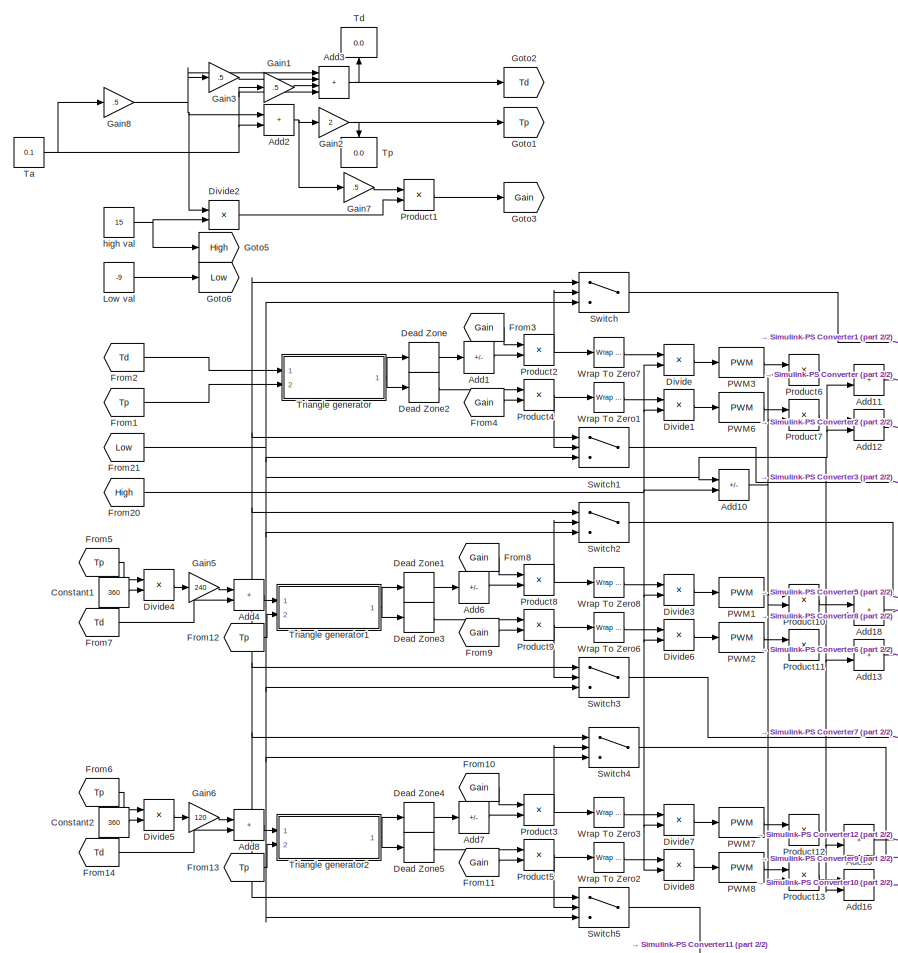
[diagram: root canvas - part 1/2, left side, full height]
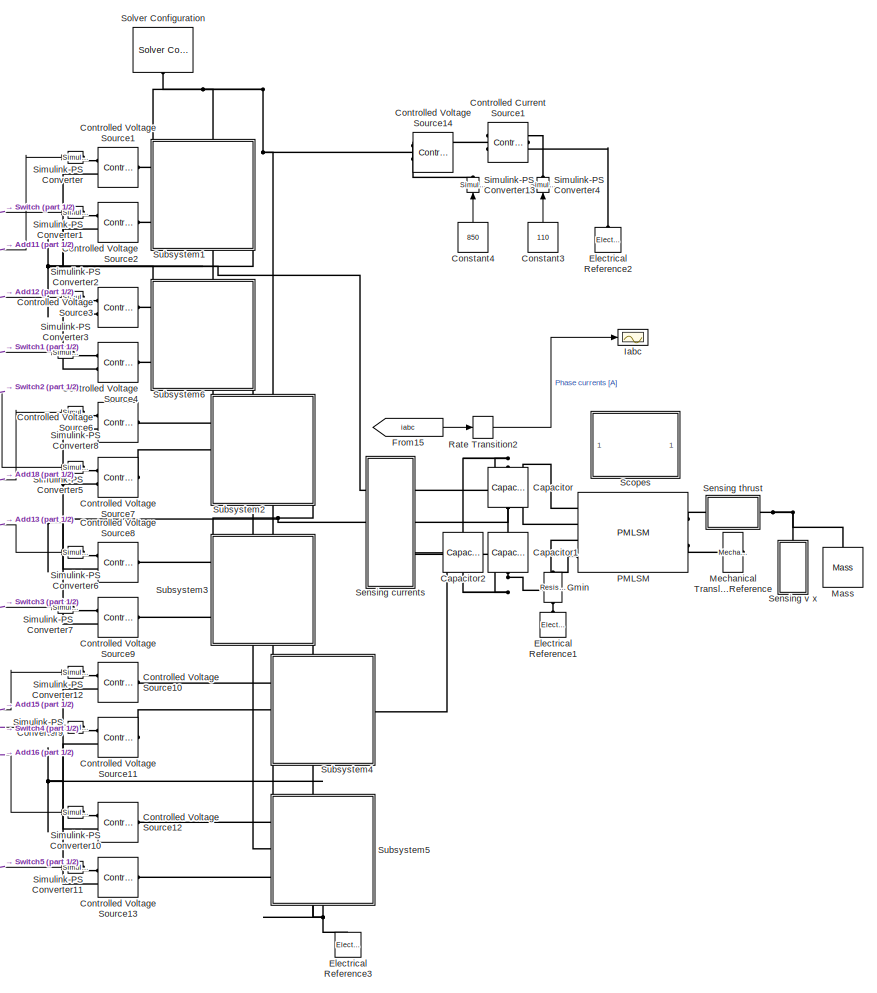
[diagram: root canvas - part 2/2, right side, full height]
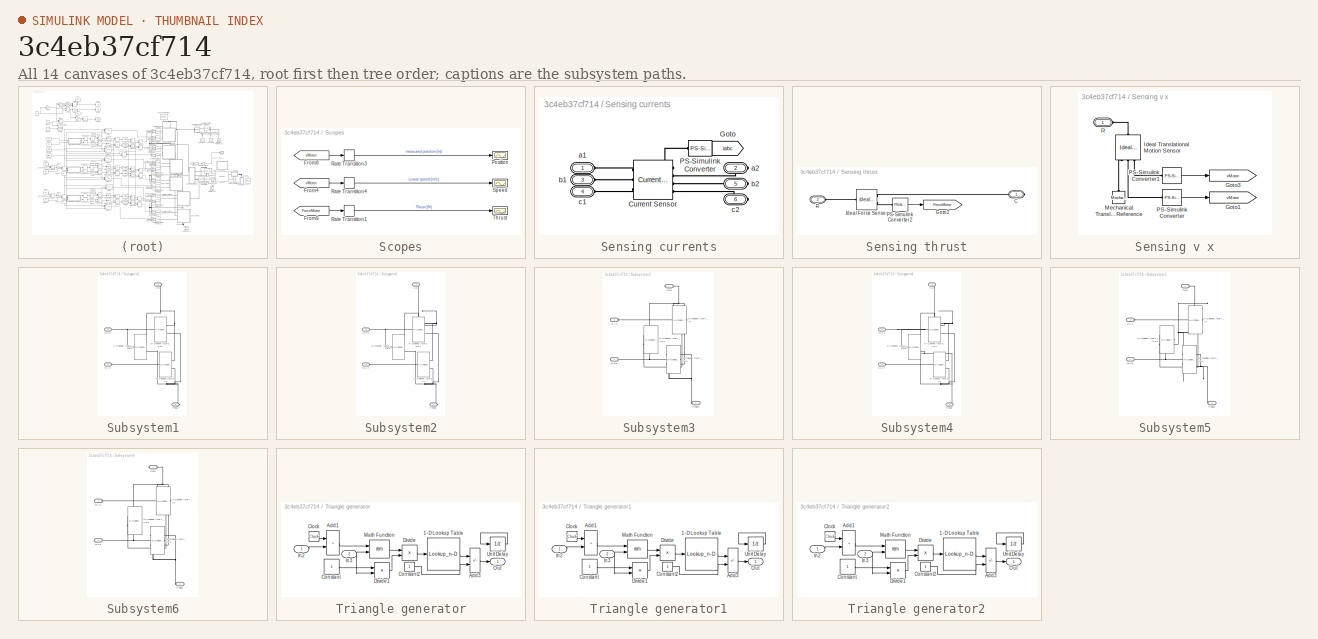
[diagram: thumbnail index - all 14 canvases of the model, root first then tree order]
MODEL slx_3c4eb37cf714
KIND model
CONFIG AbsTol = auto
CONFIG EnableMultiTasking = off
CONFIG FixedStep = auto
CONFIG MaxStep = auto
CONFIG MinStep = auto
CONFIG RelTol = 1e-3
CONFIG SampleTimeConstraint = Unconstrained
CONFIG SolverName = VariableStepAuto
CONFIG StartTime = 0.0
CONFIG StopTime = 1
BLOCK [Sum] Add1
  IconShape = rectangular
  Inputs = -
  Ports = [1, 1]
BLOCK [Sum] Add10
  IconShape = rectangular
  Inputs = -+
  Ports = [2, 1]
BLOCK [Sum] Add11
  IconShape = rectangular
  Ports = [2, 1]
BLOCK [Sum] Add12
  IconShape = rectangular
  Ports = [2, 1]
BLOCK [Sum] Add13
  IconShape = rectangular
  Ports = [2, 1]
BLOCK [Sum] Add15
  IconShape = rectangular
  Ports = [2, 1]
BLOCK [Sum] Add16
  IconShape = rectangular
  Ports = [2, 1]
BLOCK [Sum] Add18
  IconShape = rectangular
  Ports = [2, 1]
BLOCK [Sum] Add2
  IconShape = rectangular
  Ports = [2, 1]
BLOCK [Sum] Add3
  IconShape = rectangular
  Inputs = ++++
  Ports = [4, 1]
BLOCK [Sum] Add4
  IconShape = rectangular
  Ports = [2, 1]
BLOCK [Sum] Add6
  IconShape = rectangular
  Inputs = -
  Ports = [1, 1]
BLOCK [Sum] Add7
  IconShape = rectangular
  Inputs = -
  Ports = [1, 1]
BLOCK [Sum] Add8
  IconShape = rectangular
  Ports = [2, 1]
BLOCK [Reference] Capacitor  REF=fl_lib/Electrical/Electrical Elements/Capacitor
  NameLocation = left
  Ports = [0, 0, 0, 0, 0, 1, 1]
  SourceBlock = fl_lib/Electrical/Electrical Elements/Capacitor
  SourceProductBaseCode = SS
  SourceType = Capacitor
BLOCK [Reference] Capacitor1  REF=fl_lib/Electrical/Electrical Elements/Capacitor
  NameLocation = left
  Ports = [0, 0, 0, 0, 0, 1, 1]
  SourceBlock = fl_lib/Electrical/Electrical Elements/Capacitor
  SourceProductBaseCode = SS
  SourceType = Capacitor
BLOCK [Reference] Capacitor2  REF=fl_lib/Electrical/Electrical Elements/Capacitor
  NameLocation = left
  Ports = [0, 0, 0, 0, 0, 1, 1]
  SourceBlock = fl_lib/Electrical/Electrical Elements/Capacitor
  SourceProductBaseCode = SS
  SourceType = Capacitor
BLOCK [Constant] Constant1
  Value = 360
BLOCK [Constant] Constant2
  Value = 360
BLOCK [Constant] Constant3
  NameLocation = right
  Value = 110
BLOCK [Constant] Constant4
  NameLocation = right
  Value = 850
BLOCK [Reference] Controlled Current Source1  REF=fl_lib/Electrical/Electrical Sources/Controlled Current
Source
  NameLocation = top
  Ports = [0, 0, 0, 0, 0, 1, 2]
  SourceBlock = fl_lib/Electrical/Electrical Sources/Controlled Current\nSource
  SourceProductBaseCode = SS
  SourceType = Controlled Current\nSource
BLOCK [Reference] Controlled Voltage Source1  REF=fl_lib/Electrical/Electrical Sources/Controlled Voltage
Source
  Ports = [0, 0, 0, 0, 0, 1, 2]
  SourceBlock = fl_lib/Electrical/Electrical Sources/Controlled Voltage\nSource
  SourceProductBaseCode = SS
  SourceType = Controlled Voltage\nSource
BLOCK [Reference] Controlled Voltage Source10  REF=fl_lib/Electrical/Electrical Sources/Controlled Voltage
Source
  Ports = [0, 0, 0, 0, 0, 1, 2]
  SourceBlock = fl_lib/Electrical/Electrical Sources/Controlled Voltage\nSource
  SourceProductBaseCode = SS
  SourceType = Controlled Voltage\nSource
BLOCK [Reference] Controlled Voltage Source11  REF=fl_lib/Electrical/Electrical Sources/Controlled Voltage
Source
  Ports = [0, 0, 0, 0, 0, 1, 2]
  SourceBlock = fl_lib/Electrical/Electrical Sources/Controlled Voltage\nSource
  SourceProductBaseCode = SS
  SourceType = Controlled Voltage\nSource
BLOCK [Reference] Controlled Voltage Source12  REF=fl_lib/Electrical/Electrical Sources/Controlled Voltage
Source
  Ports = [0, 0, 0, 0, 0, 1, 2]
  SourceBlock = fl_lib/Electrical/Electrical Sources/Controlled Voltage\nSource
  SourceProductBaseCode = SS
  SourceType = Controlled Voltage\nSource
BLOCK [Reference] Controlled Voltage Source13  REF=fl_lib/Electrical/Electrical Sources/Controlled Voltage
Source
  Ports = [0, 0, 0, 0, 0, 1, 2]
  SourceBlock = fl_lib/Electrical/Electrical Sources/Controlled Voltage\nSource
  SourceProductBaseCode = SS
  SourceType = Controlled Voltage\nSource
BLOCK [Reference] Controlled Voltage Source14  REF=fl_lib/Electrical/Electrical Sources/Controlled Voltage
Source
  NameLocation = top
  Ports = [0, 0, 0, 0, 0, 1, 2]
  SourceBlock = fl_lib/Electrical/Electrical Sources/Controlled Voltage\nSource
  SourceProductBaseCode = SS
  SourceType = Controlled Voltage\nSource
BLOCK [Reference] Controlled Voltage Source2  REF=fl_lib/Electrical/Electrical Sources/Controlled Voltage
Source
  Ports = [0, 0, 0, 0, 0, 1, 2]
  SourceBlock = fl_lib/Electrical/Electrical Sources/Controlled Voltage\nSource
  SourceProductBaseCode = SS
  SourceType = Controlled Voltage\nSource
BLOCK [Reference] Controlled Voltage Source3  REF=fl_lib/Electrical/Electrical Sources/Controlled Voltage
Source
  Ports = [0, 0, 0, 0, 0, 1, 2]
  SourceBlock = fl_lib/Electrical/Electrical Sources/Controlled Voltage\nSource
  SourceProductBaseCode = SS
  SourceType = Controlled Voltage\nSource
BLOCK [Reference] Controlled Voltage Source4  REF=fl_lib/Electrical/Electrical Sources/Controlled Voltage
Source
  Ports = [0, 0, 0, 0, 0, 1, 2]
  SourceBlock = fl_lib/Electrical/Electrical Sources/Controlled Voltage\nSource
  SourceProductBaseCode = SS
  SourceType = Controlled Voltage\nSource
BLOCK [Reference] Controlled Voltage Source6  REF=fl_lib/Electrical/Electrical Sources/Controlled Voltage
Source
  Ports = [0, 0, 0, 0, 0, 1, 2]
  SourceBlock = fl_lib/Electrical/Electrical Sources/Controlled Voltage\nSource
  SourceProductBaseCode = SS
  SourceType = Controlled Voltage\nSource
BLOCK [Reference] Controlled Voltage Source7  REF=fl_lib/Electrical/Electrical Sources/Controlled Voltage
Source
  Ports = [0, 0, 0, 0, 0, 1, 2]
  SourceBlock = fl_lib/Electrical/Electrical Sources/Controlled Voltage\nSource
  SourceProductBaseCode = SS
  SourceType = Controlled Voltage\nSource
BLOCK [Reference] Controlled Voltage Source8  REF=fl_lib/Electrical/Electrical Sources/Controlled Voltage
Source
  Ports = [0, 0, 0, 0, 0, 1, 2]
  SourceBlock = fl_lib/Electrical/Electrical Sources/Controlled Voltage\nSource
  SourceProductBaseCode = SS
  SourceType = Controlled Voltage\nSource
BLOCK [Reference] Controlled Voltage Source9  REF=fl_lib/Electrical/Electrical Sources/Controlled Voltage
Source
  Ports = [0, 0, 0, 0, 0, 1, 2]
  SourceBlock = fl_lib/Electrical/Electrical Sources/Controlled Voltage\nSource
  SourceProductBaseCode = SS
  SourceType = Controlled Voltage\nSource
BLOCK [DeadZone] Dead Zone
  LowerValue = 0
  UpperValue = 18
BLOCK [DeadZone] Dead Zone1
  LowerValue = 0
  UpperValue = 18
BLOCK [DeadZone] Dead Zone2
  LowerValue = -18
  UpperValue = 0
BLOCK [DeadZone] Dead Zone3
  LowerValue = -18
  UpperValue = 0
BLOCK [DeadZone] Dead Zone4
  LowerValue = 0
  UpperValue = 18
BLOCK [DeadZone] Dead Zone5
  LowerValue = -18
  UpperValue = 0
BLOCK [Product] Divide
  Inputs = */
  Ports = [2, 1]
BLOCK [Product] Divide1
  Inputs = */
  Ports = [2, 1]
BLOCK [Product] Divide2
  Inputs = /*
  Ports = [2, 1]
BLOCK [Product] Divide3
  Inputs = */
  Ports = [2, 1]
BLOCK [Product] Divide4
  Inputs = */
  Ports = [2, 1]
BLOCK [Product] Divide5
  Inputs = */
  Ports = [2, 1]
BLOCK [Product] Divide6
  Inputs = */
  Ports = [2, 1]
BLOCK [Product] Divide7
  Inputs = */
  Ports = [2, 1]
BLOCK [Product] Divide8
  Inputs = */
  Ports = [2, 1]
BLOCK [Reference] Electrical Reference1  REF=fl_lib/Electrical/Electrical Elements/Electrical Reference
  NameLocation = right
  Ports = [0, 0, 0, 0, 0, 1]
  SourceBlock = fl_lib/Electrical/Electrical Elements/Electrical Reference
  SourceProductName = Foundation Library
  SourceType = Electrical Reference
BLOCK [Reference] Electrical Reference2  REF=fl_lib/Electrical/Electrical Elements/Electrical Reference
  Ports = [0, 0, 0, 0, 0, 1]
  SourceBlock = fl_lib/Electrical/Electrical Elements/Electrical Reference
  SourceProductName = Foundation Library
  SourceType = Electrical Reference
BLOCK [Reference] Electrical Reference3  REF=fl_lib/Electrical/Electrical Elements/Electrical Reference
  Ports = [0, 0, 0, 0, 0, 1]
  SourceBlock = fl_lib/Electrical/Electrical Elements/Electrical Reference
  SourceProductName = Foundation Library
  SourceType = Electrical Reference
BLOCK [From] From1
  GotoTag = Tp
BLOCK [From] From10
  GotoTag = Gain
BLOCK [From] From11
  GotoTag = Gain
BLOCK [From] From12
  GotoTag = Tp
BLOCK [From] From13
  GotoTag = Tp
BLOCK [From] From14
  GotoTag = Td
BLOCK [From] From15
  GotoTag = iabc
  TagVisibility = global
BLOCK [From] From2
  GotoTag = Td
BLOCK [From] From20
  GotoTag = High
BLOCK [From] From21
  GotoTag = Low
BLOCK [From] From3
  GotoTag = Gain
BLOCK [From] From4
  GotoTag = Gain
BLOCK [From] From5
  GotoTag = Tp
BLOCK [From] From6
  GotoTag = Tp
BLOCK [From] From7
  GotoTag = Td
BLOCK [From] From8
  GotoTag = Gain
BLOCK [From] From9
  GotoTag = Gain
BLOCK [Gain] Gain1
  Gain = .5
BLOCK [Gain] Gain2
  Gain = 2
BLOCK [Gain] Gain3
  Gain = .5
BLOCK [Gain] Gain5
  Gain = 240
BLOCK [Gain] Gain6
  Gain = 120
BLOCK [Gain] Gain7
  Gain = .5
BLOCK [Gain] Gain8
  Gain = .5
BLOCK [Reference] Gmin  REF=fl_lib/Electrical/Electrical Elements/Resistor
  NameLocation = right
  Ports = [0, 0, 0, 0, 0, 1, 1]
  SourceBlock = fl_lib/Electrical/Electrical Elements/Resistor
  SourceProductName = Foundation Library
  SourceType = Resistor
BLOCK [Goto] Goto1
  GotoTag = Tp
BLOCK [Goto] Goto2
  GotoTag = Td
BLOCK [Goto] Goto3
  GotoTag = Gain
BLOCK [Goto] Goto5
  GotoTag = High
BLOCK [Goto] Goto6
  GotoTag = Low
BLOCK [Scope] Iabc
  Floating = off
  NumInputPorts = 1
  Ports = [1]
  ScopeSpecificationString = Simulink.scopes.TimeScopeBlockCfg('CurrentConfiguration', extmgr.ConfigurationSet(extmgr.Configuration('Core','General UI',true),extmgr.Configuration('Core','Source UI',true),extmgr.Configuration('Sources','WiredSimulink',true,'DataLoggingVariableName','ScopeData1','DataLoggingSaveFormat','Array','DataLoggingDecimation','1','DataLoggingDecimateData',true),extmgr.Configuration('Visuals','Time Domai...<+1524ch>
BLOCK [Constant] Low val 
  Value = -9
BLOCK [Reference] Mass  REF=fl_lib/Mechanical/Translational
Elements/Mass
  Ports = [0, 0, 0, 0, 0, 1]
  SourceBlock = fl_lib/Mechanical/Translational\nElements/Mass
  SourceProductName = Foundation Library
  SourceType = Mass
BLOCK [Reference] Mechanical Translational Reference  REF=fl_lib/Mechanical/Translational
Elements/Mechanical
Translational
Reference
  Ports = [0, 0, 0, 0, 0, 1]
  SourceBlock = fl_lib/Mechanical/Translational\nElements/Mechanical\nTranslational\nReference
  SourceProductName = Foundation Library
  SourceType = Mechanical\nTranslational\nReference
BLOCK [Reference] PMLSM  REF=ee_lib/Electromechanical/Permanent Magnet/PMLSM
  Ports = [0, 0, 0, 0, 0, 4, 2]
  SourceBlock = ee_lib/Electromechanical/Permanent Magnet/PMLSM
  SourceProductName = Electrical
  SourceType = PMLSM
BLOCK [Reference] PWM1  REF=simulink/Discontinuities/PWM
  DisableCoverage = on
  Ports = [1, 1]
  SourceBlock = simulink/Discontinuities/PWM
  SourceProductBaseCode = SL
  SourceType = PWM
BLOCK [Reference] PWM2  REF=simulink/Discontinuities/PWM
  DisableCoverage = on
  Ports = [1, 1]
  SourceBlock = simulink/Discontinuities/PWM
  SourceProductBaseCode = SL
  SourceType = PWM
BLOCK [Reference] PWM3  REF=simulink/Discontinuities/PWM
  DisableCoverage = on
  Ports = [1, 1]
  SourceBlock = simulink/Discontinuities/PWM
  SourceProductBaseCode = SL
  SourceType = PWM
BLOCK [Reference] PWM6  REF=simulink/Discontinuities/PWM
  DisableCoverage = on
  Ports = [1, 1]
  SourceBlock = simulink/Discontinuities/PWM
  SourceProductBaseCode = SL
  SourceType = PWM
BLOCK [Reference] PWM7  REF=simulink/Discontinuities/PWM
  DisableCoverage = on
  Ports = [1, 1]
  SourceBlock = simulink/Discontinuities/PWM
  SourceProductBaseCode = SL
  SourceType = PWM
BLOCK [Reference] PWM8  REF=simulink/Discontinuities/PWM
  DisableCoverage = on
  Ports = [1, 1]
  SourceBlock = simulink/Discontinuities/PWM
  SourceProductBaseCode = SL
  SourceType = PWM
BLOCK [Product] Product1
  Ports = [2, 1]
BLOCK [Product] Product10
  Ports = [2, 1]
BLOCK [Product] Product11
  Ports = [2, 1]
BLOCK [Product] Product12
  Ports = [2, 1]
BLOCK [Product] Product13
  Ports = [2, 1]
BLOCK [Product] Product2
  Ports = [2, 1]
BLOCK [Product] Product3
  Ports = [2, 1]
BLOCK [Product] Product4
  Ports = [2, 1]
BLOCK [Product] Product5
  Ports = [2, 1]
BLOCK [Product] Product6
  Ports = [2, 1]
BLOCK [Product] Product7
  Ports = [2, 1]
BLOCK [Product] Product8
  Ports = [2, 1]
BLOCK [Product] Product9
  Ports = [2, 1]
BLOCK [RateTransition] Rate Transition2
  OutPortSampleTime = Tsc
BLOCK [SubSystem] Scopes
  Ports = []
  RequestExecContextInheritance = off
BLOCK [From] Scopes/From4
  GotoTag = vMotor
  TagVisibility = global
BLOCK [From] Scopes/From8
  GotoTag = xMotor
  TagVisibility = global
BLOCK [From] Scopes/From9
  GotoTag = ForceMotor
  NameLocation = top
  TagVisibility = global
BLOCK [Scope] Scopes/Position
  Floating = off
  NumInputPorts = 1
  Ports = [1]
  ScopeSpecificationString = Simulink.scopes.TimeScopeBlockCfg('CurrentConfiguration', extmgr.ConfigurationSet(extmgr.Configuration('Core','General UI',true),extmgr.Configuration('Core','Source UI',true),extmgr.Configuration('Sources','WiredSimulink',true,'DataLoggingVariableName','ScopeData4','DataLoggingSaveFormat','Array','DataLoggingDecimation','1','DataLoggingDecimateData',true),extmgr.Configuration('Visuals','Time Domai...<+1544ch>
BLOCK [RateTransition] Scopes/Rate Transition1
  OutPortSampleTime = Tsc
BLOCK [RateTransition] Scopes/Rate Transition3
  OutPortSampleTime = Tsc
BLOCK [RateTransition] Scopes/Rate Transition4
  OutPortSampleTime = Tsc
BLOCK [Scope] Scopes/Speed
  Floating = off
  NumInputPorts = 1
  Ports = [1]
  ScopeSpecificationString = Simulink.scopes.TimeScopeBlockCfg('CurrentConfiguration', extmgr.ConfigurationSet(extmgr.Configuration('Core','General UI',true),extmgr.Configuration('Core','Source UI',true),extmgr.Configuration('Sources','WiredSimulink',true,'DataLoggingVariableName','ScopeData5','DataLoggingSaveFormat','Array','DataLoggingDecimation','1','DataLoggingDecimateData',true),extmgr.Configuration('Visuals','Time Domai...<+1541ch>
BLOCK [Scope] Scopes/Thrust
  Floating = off
  NumInputPorts = 1
  Ports = [1]
  ScopeSpecificationString = Simulink.scopes.TimeScopeBlockCfg('CurrentConfiguration', extmgr.ConfigurationSet(extmgr.Configuration('Core','General UI',true),extmgr.Configuration('Core','Source UI',true),extmgr.Configuration('Sources','WiredSimulink',true,'DataLoggingVariableName','ScopeData7','DataLoggingSaveFormat','Array','DataLoggingDecimation','1','DataLoggingDecimateData',true),extmgr.Configuration('Visuals','Time Domai...<+1547ch>
BLOCK [SubSystem] Sensing currents
  Ports = [0, 0, 0, 0, 0, 3, 3]
  RequestExecContextInheritance = off
BLOCK [Reference] Sensing currents/Current Sensor  REF=ee_lib/Sensors &
Transducers/Current Sensor
(Three-Phase)
  Ports = [0, 0, 0, 0, 0, 3, 4]
  SourceBlock = ee_lib/Sensors &\nTransducers/Current Sensor\n(Three-Phase)
  SourceProductName = Electrical
  SourceType = Current Sensor\n(Three-Phase)
BLOCK [Goto] Sensing currents/Goto
  GotoTag = iabc
  TagVisibility = global
BLOCK [Reference] Sensing currents/PS-Simulink Converter  REF=nesl_utility/PS-Simulink
Converter
  Ports = [0, 1, 0, 0, 0, 1]
  SourceBlock = nesl_utility/PS-Simulink\nConverter
  SourceProductName = Utilities
  SourceType = PS-Simulink\nConverter
BLOCK [PMIOPort] Sensing currents/a1
  Side = Left
BLOCK [PMIOPort] Sensing currents/a2
  Port = 2
  Side = Right
BLOCK [PMIOPort] Sensing currents/b1
  Port = 3
  Side = Left
BLOCK [PMIOPort] Sensing currents/b2
  Port = 5
  Side = Right
BLOCK [PMIOPort] Sensing currents/c1
  Port = 4
  Side = Left
BLOCK [PMIOPort] Sensing currents/c2
  Port = 6
  Side = Right
BLOCK [SubSystem] Sensing thrust
  Ports = [0, 0, 0, 0, 0, 1, 1]
  RequestExecContextInheritance = off
BLOCK [PMIOPort] Sensing thrust/C
  Side = Right
BLOCK [Goto] Sensing thrust/Goto2
  GotoTag = ForceMotor
  NameLocation = top
  TagVisibility = global
BLOCK [Reference] Sensing thrust/Ideal Force Sensor  REF=fl_lib/Mechanical/Mechanical Sensors/Ideal Force Sensor
  Ports = [0, 0, 0, 0, 0, 1, 2]
  SourceBlock = fl_lib/Mechanical/Mechanical Sensors/Ideal Force Sensor
  SourceProductName = Foundation Library
  SourceType = Ideal Force Sensor
BLOCK [Reference] Sensing thrust/PS-Simulink Converter2  REF=nesl_utility/PS-Simulink
Converter
  Ports = [0, 1, 0, 0, 0, 1]
  SourceBlock = nesl_utility/PS-Simulink\nConverter
  SourceProductName = Utilities
  SourceType = PS-Simulink\nConverter
BLOCK [PMIOPort] Sensing thrust/R
  Port = 2
  Side = Left
BLOCK [SubSystem] Sensing v x
  NameLocation = left
  Ports = [0, 0, 0, 0, 0, 1]
  RequestExecContextInheritance = off
BLOCK [Goto] Sensing v x/Goto1
  GotoTag = vMotor
  NameLocation = top
  TagVisibility = global
BLOCK [Goto] Sensing v x/Goto3
  GotoTag = xMotor
  NameLocation = top
  TagVisibility = global
BLOCK [Reference] Sensing v x/Ideal Translational Motion Sensor  REF=fl_lib/Mechanical/Mechanical Sensors/Ideal Translational
Motion Sensor
  Ports = [0, 0, 0, 0, 0, 1, 3]
  SourceBlock = fl_lib/Mechanical/Mechanical Sensors/Ideal Translational\nMotion Sensor
  SourceProductName = Foundation Library
  SourceType = Ideal Translational\nMotion Sensor
BLOCK [Reference] Sensing v x/Mechanical Translational Reference  REF=fl_lib/Mechanical/Translational
Elements/Mechanical
Translational
Reference
  NameLocation = left
  Ports = [0, 0, 0, 0, 0, 1]
  SourceBlock = fl_lib/Mechanical/Translational\nElements/Mechanical\nTranslational\nReference
  SourceProductName = Foundation Library
  SourceType = Mechanical\nTranslational\nReference
BLOCK [Reference] Sensing v x/PS-Simulink Converter  REF=nesl_utility/PS-Simulink
Converter
  Ports = [0, 1, 0, 0, 0, 1]
  SourceBlock = nesl_utility/PS-Simulink\nConverter
  SourceProductName = Utilities
  SourceType = PS-Simulink\nConverter
BLOCK [Reference] Sensing v x/PS-Simulink Converter1  REF=nesl_utility/PS-Simulink
Converter
  Ports = [0, 1, 0, 0, 0, 1]
  SourceBlock = nesl_utility/PS-Simulink\nConverter
  SourceProductName = Utilities
  SourceType = PS-Simulink\nConverter
BLOCK [PMIOPort] Sensing v x/R
  Side = Left
BLOCK [Reference] Simulink-PS Converter  REF=nesl_utility/Simulink-PS
Converter
  Ports = [1, 0, 0, 0, 0, 0, 1]
  SourceBlock = nesl_utility/Simulink-PS\nConverter
  SourceProductBaseCode = SS
  SourceType = Simulink-PS\nConverter
BLOCK [Reference] Simulink-PS Converter1  REF=nesl_utility/Simulink-PS
Converter
  Ports = [1, 0, 0, 0, 0, 0, 1]
  SourceBlock = nesl_utility/Simulink-PS\nConverter
  SourceProductBaseCode = SS
  SourceType = Simulink-PS\nConverter
BLOCK [Reference] Simulink-PS Converter10  REF=nesl_utility/Simulink-PS
Converter
  Ports = [1, 0, 0, 0, 0, 0, 1]
  SourceBlock = nesl_utility/Simulink-PS\nConverter
  SourceProductBaseCode = SS
  SourceType = Simulink-PS\nConverter
BLOCK [Reference] Simulink-PS Converter11  REF=nesl_utility/Simulink-PS
Converter
  Ports = [1, 0, 0, 0, 0, 0, 1]
  SourceBlock = nesl_utility/Simulink-PS\nConverter
  SourceProductBaseCode = SS
  SourceType = Simulink-PS\nConverter
BLOCK [Reference] Simulink-PS Converter12  REF=nesl_utility/Simulink-PS
Converter
  Ports = [1, 0, 0, 0, 0, 0, 1]
  SourceBlock = nesl_utility/Simulink-PS\nConverter
  SourceProductBaseCode = SS
  SourceType = Simulink-PS\nConverter
BLOCK [Reference] Simulink-PS Converter13  REF=nesl_utility/Simulink-PS
Converter
  NameLocation = right
  Ports = [1, 0, 0, 0, 0, 0, 1]
  SourceBlock = nesl_utility/Simulink-PS\nConverter
  SourceProductBaseCode = SS
  SourceType = Simulink-PS\nConverter
BLOCK [Reference] Simulink-PS Converter2  REF=nesl_utility/Simulink-PS
Converter
  Ports = [1, 0, 0, 0, 0, 0, 1]
  SourceBlock = nesl_utility/Simulink-PS\nConverter
  SourceProductBaseCode = SS
  SourceType = Simulink-PS\nConverter
BLOCK [Reference] Simulink-PS Converter3  REF=nesl_utility/Simulink-PS
Converter
  Ports = [1, 0, 0, 0, 0, 0, 1]
  SourceBlock = nesl_utility/Simulink-PS\nConverter
  SourceProductBaseCode = SS
  SourceType = Simulink-PS\nConverter
BLOCK [Reference] Simulink-PS Converter4  REF=nesl_utility/Simulink-PS
Converter
  NameLocation = right
  Ports = [1, 0, 0, 0, 0, 0, 1]
  SourceBlock = nesl_utility/Simulink-PS\nConverter
  SourceProductBaseCode = SS
  SourceType = Simulink-PS\nConverter
BLOCK [Reference] Simulink-PS Converter5  REF=nesl_utility/Simulink-PS
Converter
  Ports = [1, 0, 0, 0, 0, 0, 1]
  SourceBlock = nesl_utility/Simulink-PS\nConverter
  SourceProductBaseCode = SS
  SourceType = Simulink-PS\nConverter
BLOCK [Reference] Simulink-PS Converter6  REF=nesl_utility/Simulink-PS
Converter
  Ports = [1, 0, 0, 0, 0, 0, 1]
  SourceBlock = nesl_utility/Simulink-PS\nConverter
  SourceProductBaseCode = SS
  SourceType = Simulink-PS\nConverter
BLOCK [Reference] Simulink-PS Converter7  REF=nesl_utility/Simulink-PS
Converter
  Ports = [1, 0, 0, 0, 0, 0, 1]
  SourceBlock = nesl_utility/Simulink-PS\nConverter
  SourceProductBaseCode = SS
  SourceType = Simulink-PS\nConverter
BLOCK [Reference] Simulink-PS Converter8  REF=nesl_utility/Simulink-PS
Converter
  Ports = [1, 0, 0, 0, 0, 0, 1]
  SourceBlock = nesl_utility/Simulink-PS\nConverter
  SourceProductBaseCode = SS
  SourceType = Simulink-PS\nConverter
BLOCK [Reference] Simulink-PS Converter9  REF=nesl_utility/Simulink-PS
Converter
  Ports = [1, 0, 0, 0, 0, 0, 1]
  SourceBlock = nesl_utility/Simulink-PS\nConverter
  SourceProductBaseCode = SS
  SourceType = Simulink-PS\nConverter
BLOCK [Reference] Solver Configuration  REF=nesl_utility/Solver
Configuration
  NameLocation = right
  Ports = [0, 0, 0, 0, 0, 0, 1]
  SourceBlock = nesl_utility/Solver\nConfiguration
  SourceProductName = Utilities
  SourceType = Solver\nConfiguration
BLOCK [SubSystem] Subsystem1
  PortSchema = {"entries":[{"content":{"sides":[{"content":{"connectorIds":["LConn1","LConn2"]},"type":"ConnectorPlacement.EquallySpacedRectSide","uuid":"28828598-fa48-4158-b9b9-1a24f22427e6"},{"content":{"connectorIds":[],"side":"RIGHT"},"type":"ConnectorPlacement.EquallySpacedRectSide","uuid":"019dad23-614b-4455-8161-a0bd3c38edbe"},{"content":{"connectorIds":["LConn3"],"side":"TOP"},"type":"ConnectorPlacement....<+550ch>  <repeated x6 — deduplicated; at blocks: Subsystem1, Subsystem2, Subsystem3, Subsystem4, Subsystem5, Subsystem6>
  Ports = [0, 0, 0, 0, 0, 3, 1]
  RequestExecContextInheritance = off
BLOCK [Reference] Subsystem1/N-Channel IGBT_A4  REF=ee_lib/Semiconductors &
Converters/N-Channel IGBT
  Ports = [0, 0, 0, 0, 0, 1, 2]
  SourceBlock = ee_lib/Semiconductors &\nConverters/N-Channel IGBT
  SourceProductBaseCode = PS
  SourceType = N-Channel IGBT
BLOCK [Reference] Subsystem1/N-Channel IGBT_C3-1  REF=ee_lib/Semiconductors &
Converters/N-Channel IGBT
  Ports = [0, 0, 0, 0, 0, 1, 2]
  SourceBlock = ee_lib/Semiconductors &\nConverters/N-Channel IGBT
  SourceProductName = Electrical
  SourceType = N-Channel IGBT
BLOCK [Reference] Subsystem1/N-Channel IGBT_C3-2  REF=ee_lib/Semiconductors &
Converters/N-Channel IGBT
  Ports = [0, 0, 0, 0, 0, 1, 2]
  SourceBlock = ee_lib/Semiconductors &\nConverters/N-Channel IGBT
  SourceProductName = Electrical
  SourceType = N-Channel IGBT
BLOCK [PMIOPort] Subsystem1/Phase
  Port = 4
  Side = Right
BLOCK [PMIOPort] Subsystem1/Vcc
  NameLocation = top
  Port = 3
  Side = Left
BLOCK [PMIOPort] Subsystem1/to A4
  Port = 2
  Side = Left
BLOCK [PMIOPort] Subsystem1/to C3
  Side = Left
BLOCK [SubSystem] Subsystem2
  Ports = [0, 0, 0, 0, 0, 3, 1]
  RequestExecContextInheritance = off
BLOCK [Reference] Subsystem2/N-Channel IGBT_A4  REF=ee_lib/Semiconductors &
Converters/N-Channel IGBT
  Ports = [0, 0, 0, 0, 0, 1, 2]
  SourceBlock = ee_lib/Semiconductors &\nConverters/N-Channel IGBT
  SourceProductBaseCode = PS
  SourceType = N-Channel IGBT
BLOCK [Reference] Subsystem2/N-Channel IGBT_C3-1  REF=ee_lib/Semiconductors &
Converters/N-Channel IGBT
  Ports = [0, 0, 0, 0, 0, 1, 2]
  SourceBlock = ee_lib/Semiconductors &\nConverters/N-Channel IGBT
  SourceProductName = Electrical
  SourceType = N-Channel IGBT
BLOCK [Reference] Subsystem2/N-Channel IGBT_C3-2  REF=ee_lib/Semiconductors &
Converters/N-Channel IGBT
  Ports = [0, 0, 0, 0, 0, 1, 2]
  SourceBlock = ee_lib/Semiconductors &\nConverters/N-Channel IGBT
  SourceProductName = Electrical
  SourceType = N-Channel IGBT
BLOCK [PMIOPort] Subsystem2/Phase
  Port = 4
  Side = Right
BLOCK [PMIOPort] Subsystem2/Vcc
  NameLocation = top
  Port = 3
  Side = Left
BLOCK [PMIOPort] Subsystem2/to A4
  Port = 2
  Side = Left
BLOCK [PMIOPort] Subsystem2/to C3
  Side = Left
BLOCK [SubSystem] Subsystem3
  Ports = [0, 0, 0, 0, 0, 3, 1]
  RequestExecContextInheritance = off
BLOCK [Reference] Subsystem3/N-Channel IGBT_A4  REF=ee_lib/Semiconductors &
Converters/N-Channel IGBT
  NameLocation = top
  Ports = [0, 0, 0, 0, 0, 1, 2]
  SourceBlock = ee_lib/Semiconductors &\nConverters/N-Channel IGBT
  SourceProductBaseCode = PS
  SourceType = N-Channel IGBT
BLOCK [Reference] Subsystem3/N-Channel IGBT_C3-1  REF=ee_lib/Semiconductors &
Converters/N-Channel IGBT
  NameLocation = top
  Ports = [0, 0, 0, 0, 0, 1, 2]
  SourceBlock = ee_lib/Semiconductors &\nConverters/N-Channel IGBT
  SourceProductName = Electrical
  SourceType = N-Channel IGBT
BLOCK [Reference] Subsystem3/N-Channel IGBT_C3-2  REF=ee_lib/Semiconductors &
Converters/N-Channel IGBT
  NameLocation = top
  Ports = [0, 0, 0, 0, 0, 1, 2]
  SourceBlock = ee_lib/Semiconductors &\nConverters/N-Channel IGBT
  SourceProductName = Electrical
  SourceType = N-Channel IGBT
BLOCK [PMIOPort] Subsystem3/Phase
  NameLocation = top
  Port = 3
  Side = Left
BLOCK [PMIOPort] Subsystem3/Zero
  Port = 4
  Side = Right
BLOCK [PMIOPort] Subsystem3/to A4
  NameLocation = top
  Port = 2
  Side = Left
BLOCK [PMIOPort] Subsystem3/to C3
  NameLocation = top
  Side = Left
BLOCK [SubSystem] Subsystem4
  Ports = [0, 0, 0, 0, 0, 3, 1]
  RequestExecContextInheritance = off
BLOCK [Reference] Subsystem4/N-Channel IGBT_A4  REF=ee_lib/Semiconductors &
Converters/N-Channel IGBT
  Ports = [0, 0, 0, 0, 0, 1, 2]
  SourceBlock = ee_lib/Semiconductors &\nConverters/N-Channel IGBT
  SourceProductBaseCode = PS
  SourceType = N-Channel IGBT
BLOCK [Reference] Subsystem4/N-Channel IGBT_C3-1  REF=ee_lib/Semiconductors &
Converters/N-Channel IGBT
  Ports = [0, 0, 0, 0, 0, 1, 2]
  SourceBlock = ee_lib/Semiconductors &\nConverters/N-Channel IGBT
  SourceProductName = Electrical
  SourceType = N-Channel IGBT
BLOCK [Reference] Subsystem4/N-Channel IGBT_C3-2  REF=ee_lib/Semiconductors &
Converters/N-Channel IGBT
  Ports = [0, 0, 0, 0, 0, 1, 2]
  SourceBlock = ee_lib/Semiconductors &\nConverters/N-Channel IGBT
  SourceProductName = Electrical
  SourceType = N-Channel IGBT
BLOCK [PMIOPort] Subsystem4/Phase
  Port = 4
  Side = Right
BLOCK [PMIOPort] Subsystem4/Vcc
  NameLocation = top
  Port = 3
  Side = Left
BLOCK [PMIOPort] Subsystem4/to A4
  Port = 2
  Side = Left
BLOCK [PMIOPort] Subsystem4/to C3
  Side = Left
BLOCK [SubSystem] Subsystem5
  Ports = [0, 0, 0, 0, 0, 3, 1]
  RequestExecContextInheritance = off
BLOCK [Reference] Subsystem5/N-Channel IGBT_A4  REF=ee_lib/Semiconductors &
Converters/N-Channel IGBT
  NameLocation = top
  Ports = [0, 0, 0, 0, 0, 1, 2]
  SourceBlock = ee_lib/Semiconductors &\nConverters/N-Channel IGBT
  SourceProductBaseCode = PS
  SourceType = N-Channel IGBT
BLOCK [Reference] Subsystem5/N-Channel IGBT_C3-1  REF=ee_lib/Semiconductors &
Converters/N-Channel IGBT
  NameLocation = top
  Ports = [0, 0, 0, 0, 0, 1, 2]
  SourceBlock = ee_lib/Semiconductors &\nConverters/N-Channel IGBT
  SourceProductName = Electrical
  SourceType = N-Channel IGBT
BLOCK [Reference] Subsystem5/N-Channel IGBT_C3-2  REF=ee_lib/Semiconductors &
Converters/N-Channel IGBT
  NameLocation = top
  Ports = [0, 0, 0, 0, 0, 1, 2]
  SourceBlock = ee_lib/Semiconductors &\nConverters/N-Channel IGBT
  SourceProductName = Electrical
  SourceType = N-Channel IGBT
BLOCK [PMIOPort] Subsystem5/Phase
  NameLocation = top
  Port = 3
  Side = Left
BLOCK [PMIOPort] Subsystem5/Zero
  Port = 4
  Side = Right
BLOCK [PMIOPort] Subsystem5/to A4
  NameLocation = top
  Port = 2
  Side = Left
BLOCK [PMIOPort] Subsystem5/to C3
  NameLocation = top
  Side = Left
BLOCK [SubSystem] Subsystem6
  Ports = [0, 0, 0, 0, 0, 3, 1]
  RequestExecContextInheritance = off
BLOCK [Reference] Subsystem6/N-Channel IGBT_A4  REF=ee_lib/Semiconductors &
Converters/N-Channel IGBT
  NameLocation = top
  Ports = [0, 0, 0, 0, 0, 1, 2]
  SourceBlock = ee_lib/Semiconductors &\nConverters/N-Channel IGBT
  SourceProductBaseCode = PS
  SourceType = N-Channel IGBT
BLOCK [Reference] Subsystem6/N-Channel IGBT_C3-1  REF=ee_lib/Semiconductors &
Converters/N-Channel IGBT
  NameLocation = top
  Ports = [0, 0, 0, 0, 0, 1, 2]
  SourceBlock = ee_lib/Semiconductors &\nConverters/N-Channel IGBT
  SourceProductName = Electrical
  SourceType = N-Channel IGBT
BLOCK [Reference] Subsystem6/N-Channel IGBT_C3-2  REF=ee_lib/Semiconductors &
Converters/N-Channel IGBT
  NameLocation = top
  Ports = [0, 0, 0, 0, 0, 1, 2]
  SourceBlock = ee_lib/Semiconductors &\nConverters/N-Channel IGBT
  SourceProductName = Electrical
  SourceType = N-Channel IGBT
BLOCK [PMIOPort] Subsystem6/Phase
  NameLocation = top
  Port = 3
  Side = Left
BLOCK [PMIOPort] Subsystem6/Zero
  Port = 4
  Side = Right
BLOCK [PMIOPort] Subsystem6/to A4
  NameLocation = top
  Port = 2
  Side = Left
BLOCK [PMIOPort] Subsystem6/to C3
  NameLocation = top
  Side = Left
BLOCK [Switch] Switch
  Criteria = u2 > Threshold
  InputSameDT = off
  SaturateOnIntegerOverflow = off
  Threshold = 13
BLOCK [Switch] Switch1
  Criteria = u2 > Threshold
  InputSameDT = off
  SaturateOnIntegerOverflow = off
  Threshold = 13
BLOCK [Switch] Switch2
  Criteria = u2 > Threshold
  InputSameDT = off
  SaturateOnIntegerOverflow = off
  Threshold = 13
BLOCK [Switch] Switch3
  Criteria = u2 > Threshold
  InputSameDT = off
  SaturateOnIntegerOverflow = off
  Threshold = 13
BLOCK [Switch] Switch4
  Criteria = u2 > Threshold
  InputSameDT = off
  SaturateOnIntegerOverflow = off
  Threshold = 13
BLOCK [Switch] Switch5
  Criteria = u2 > Threshold
  InputSameDT = off
  SaturateOnIntegerOverflow = off
  Threshold = 13
BLOCK [Constant] Ta
  Value = 0.1
BLOCK [Display] Td
  Decimation = 1
  Format = long
  NameLocation = right
  Ports = [1]
BLOCK [Display] Tp
  Decimation = 1
  Format = long
  NameLocation = right
  Ports = [1]
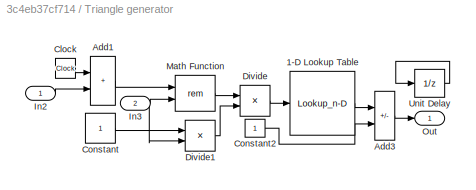
BLOCK [SubSystem] Triangle generator
  Ports = [2, 1]
  RequestExecContextInheritance = off
BLOCK [Lookup_n-D] Triangle generator/1-D Lookup Table
  BeginIndexSearchUsingPreviousIndexResult = on
  BreakpointsForDimension1 = [0 .5 1]
  InputPortMap = u0
  InternalRulePriority = Speed
  NumberOfTableDimensions = 1
  Ports = [1, 1]
  RndMeth = Simplest
  Table = [0 2 0]
BLOCK [Sum] Triangle generator/Add1
  IconShape = rectangular
  Ports = [2, 1]
BLOCK [Sum] Triangle generator/Add3
  IconShape = rectangular
  Inputs = +-
  Ports = [2, 1]
BLOCK [Clock] Triangle generator/Clock
  Decimation = 1
  NameLocation = top
BLOCK [Constant] Triangle generator/Constant
BLOCK [Constant] Triangle generator/Constant2
  SampleTime = 0
BLOCK [Product] Triangle generator/Divide
  Inputs = **
  Ports = [2, 1]
BLOCK [Product] Triangle generator/Divide1
  Inputs = */
  Ports = [2, 1]
BLOCK [Inport] Triangle generator/In2
BLOCK [Inport] Triangle generator/In3
  Port = 2
BLOCK [Math] Triangle generator/Math Function
  Operator = rem
  Ports = [2, 1]
  SignedPower = on
BLOCK [Outport] Triangle generator/Out
BLOCK [UnitDelay] Triangle generator/Unit Delay
  HasFrameUpgradeWarning = on
  SampleTime = 1e-5
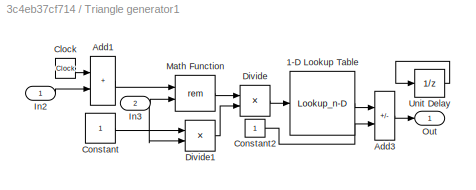
BLOCK [SubSystem] Triangle generator1
  Ports = [2, 1]
  RequestExecContextInheritance = off
BLOCK [Lookup_n-D] Triangle generator1/1-D Lookup Table
  BeginIndexSearchUsingPreviousIndexResult = on
  BreakpointsForDimension1 = [0 .5 1]
  InputPortMap = u0
  InternalRulePriority = Speed
  NumberOfTableDimensions = 1
  Ports = [1, 1]
  RndMeth = Simplest
  Table = [0 2 0]
BLOCK [Sum] Triangle generator1/Add1
  IconShape = rectangular
  Ports = [2, 1]
BLOCK [Sum] Triangle generator1/Add3
  IconShape = rectangular
  Inputs = +-
  Ports = [2, 1]
BLOCK [Clock] Triangle generator1/Clock
  Decimation = 1
  NameLocation = top
BLOCK [Constant] Triangle generator1/Constant
BLOCK [Constant] Triangle generator1/Constant2
  SampleTime = 0
BLOCK [Product] Triangle generator1/Divide
  Inputs = **
  Ports = [2, 1]
BLOCK [Product] Triangle generator1/Divide1
  Inputs = */
  Ports = [2, 1]
BLOCK [Inport] Triangle generator1/In2
BLOCK [Inport] Triangle generator1/In3
  Port = 2
BLOCK [Math] Triangle generator1/Math Function
  Operator = rem
  Ports = [2, 1]
  SignedPower = on
BLOCK [Outport] Triangle generator1/Out
BLOCK [UnitDelay] Triangle generator1/Unit Delay
  HasFrameUpgradeWarning = on
  SampleTime = 1e-5
BLOCK [SubSystem] Triangle generator2
  Ports = [2, 1]
  RequestExecContextInheritance = off
BLOCK [Lookup_n-D] Triangle generator2/1-D Lookup Table
  BeginIndexSearchUsingPreviousIndexResult = on
  BreakpointsForDimension1 = [0 .5 1]
  InputPortMap = u0
  InternalRulePriority = Speed
  NumberOfTableDimensions = 1
  Ports = [1, 1]
  RndMeth = Simplest
  Table = [0 2 0]
BLOCK [Sum] Triangle generator2/Add1
  IconShape = rectangular
  Ports = [2, 1]
BLOCK [Sum] Triangle generator2/Add3
  IconShape = rectangular
  Inputs = +-
  Ports = [2, 1]
BLOCK [Clock] Triangle generator2/Clock
  Decimation = 1
  NameLocation = top
BLOCK [Constant] Triangle generator2/Constant
BLOCK [Constant] Triangle generator2/Constant2
  SampleTime = 0
BLOCK [Product] Triangle generator2/Divide
  Inputs = **
  Ports = [2, 1]
BLOCK [Product] Triangle generator2/Divide1
  Inputs = */
  Ports = [2, 1]
BLOCK [Inport] Triangle generator2/In2
BLOCK [Inport] Triangle generator2/In3
  Port = 2
BLOCK [Math] Triangle generator2/Math Function
  Operator = rem
  Ports = [2, 1]
  SignedPower = on
BLOCK [Outport] Triangle generator2/Out
BLOCK [UnitDelay] Triangle generator2/Unit Delay
  HasFrameUpgradeWarning = on
  SampleTime = 1e-5
BLOCK [Reference] Wrap To Zero1  REF=simulink/Discontinuities/Wrap To Zero
  Ports = [1, 1]
  SourceBlock = simulink/Discontinuities/Wrap To Zero
  SourceProductBaseCode = SL
  SourceType = Wrap To Zero
BLOCK [Reference] Wrap To Zero2  REF=simulink/Discontinuities/Wrap To Zero
  Ports = [1, 1]
  SourceBlock = simulink/Discontinuities/Wrap To Zero
  SourceProductBaseCode = SL
  SourceType = Wrap To Zero
BLOCK [Reference] Wrap To Zero3  REF=simulink/Discontinuities/Wrap To Zero
  Ports = [1, 1]
  SourceBlock = simulink/Discontinuities/Wrap To Zero
  SourceProductBaseCode = SL
  SourceType = Wrap To Zero
BLOCK [Reference] Wrap To Zero6  REF=simulink/Discontinuities/Wrap To Zero
  Ports = [1, 1]
  SourceBlock = simulink/Discontinuities/Wrap To Zero
  SourceProductBaseCode = SL
  SourceType = Wrap To Zero
BLOCK [Reference] Wrap To Zero7  REF=simulink/Discontinuities/Wrap To Zero
  Ports = [1, 1]
  SourceBlock = simulink/Discontinuities/Wrap To Zero
  SourceProductBaseCode = SL
  SourceType = Wrap To Zero
BLOCK [Reference] Wrap To Zero8  REF=simulink/Discontinuities/Wrap To Zero
  Ports = [1, 1]
  SourceBlock = simulink/Discontinuities/Wrap To Zero
  SourceProductBaseCode = SL
  SourceType = Wrap To Zero
BLOCK [Constant] high val 
  Value = 15
NET Add10:1 -> Product10:2, Product11:2, Product12:2, Product13:2, Product6:2, Product7:2
LINE Add11:1 -> Simulink-PS Converter:1
LINE Add12:1 -> Simulink-PS Converter2:1
LINE Add13:1 -> Simulink-PS Converter6:1
LINE Add15:1 -> Simulink-PS Converter12:1
LINE Add16:1 -> Simulink-PS Converter10:1
LINE Add18:1 -> Simulink-PS Converter8:1
LINE Add1:1 -> Product2:2
NET Add2:1 -> Gain2:1, Gain7:1
NET Add3:1 -> Goto2:1, Td:1
LINE Add4:1 -> Triangle generator1:1
LINE Add6:1 -> Product8:2
LINE Add7:1 -> Product3:2
LINE Add8:1 -> Triangle generator2:1
LINE Constant1:1 -> Divide4:2
LINE Constant2:1 -> Divide5:2
LINE Constant3:1 -> Simulink-PS Converter4:1
LINE Constant4:1 -> Simulink-PS Converter13:1
LINE Dead Zone1:1 -> Add6:1
LINE Dead Zone2:1 -> Product4:1
LINE Dead Zone3:1 -> Product9:1
LINE Dead Zone4:1 -> Add7:1
LINE Dead Zone5:1 -> Product5:1
LINE Dead Zone:1 -> Add1:1
LINE Divide1:1 -> PWM6:1
LINE Divide2:1 -> Product1:2
LINE Divide3:1 -> PWM1:1
LINE Divide4:1 -> Gain5:1
LINE Divide5:1 -> Gain6:1
LINE Divide6:1 -> PWM2:1
LINE Divide7:1 -> PWM7:1
LINE Divide8:1 -> PWM8:1
LINE Divide:1 -> PWM3:1
LINE From10:1 -> Product3:1
LINE From11:1 -> Product5:2
LINE From12:1 -> Triangle generator1:2
LINE From13:1 -> Triangle generator2:2
LINE From14:1 -> Add8:2
LINE From15:1 -> Rate Transition2:1
LINE From1:1 -> Triangle generator:2
NET From20:1 -> Add10:2, Divide1:2, Divide3:2, Divide6:2, Divide7:2, Divide8:2, Divide:2, Switch1:1, Switch2:1, Switch3:1, Switch4:1, Switch5:1, Switch:1
NET From21:1 -> Add10:1, Add11:2, Add12:2, Add13:2, Add15:2, Add16:2, Add18:2, Switch1:3, Switch2:3, Switch3:3, Switch4:3, Switch5:3, Switch:3
LINE From2:1 -> Triangle generator:1
LINE From3:1 -> Product2:1
LINE From4:1 -> Product4:2
LINE From5:1 -> Divide4:1
LINE From6:1 -> Divide5:1
LINE From7:1 -> Add4:2
LINE From8:1 -> Product8:1
LINE From9:1 -> Product9:2
LINE Gain1:1 -> Add3:3
NET Gain2:1 -> Goto1:1, Tp:1
LINE Gain3:1 -> Add3:2
LINE Gain5:1 -> Add4:1
LINE Gain6:1 -> Add8:1
LINE Gain7:1 -> Product1:1
NET Gain8:1 -> Add2:1, Add3:1, Divide2:1, Gain3:1
LINE Low val :1 -> Goto6:1
LINE PWM1:1 -> Product10:1
LINE PWM2:1 -> Product11:1
LINE PWM3:1 -> Product6:1
LINE PWM6:1 -> Product7:1
LINE PWM7:1 -> Product12:1
LINE PWM8:1 -> Product13:1
LINE Product10:1 -> Add18:1
LINE Product11:1 -> Add13:1
LINE Product12:1 -> Add15:1
LINE Product13:1 -> Add16:1
LINE Product1:1 -> Goto3:1
NET Product2:1 -> Switch:2, Wrap To Zero7:1
NET Product3:1 -> Switch4:2, Wrap To Zero3:1
NET Product4:1 -> Switch1:2, Wrap To Zero1:1
NET Product5:1 -> Switch5:2, Wrap To Zero2:1
LINE Product6:1 -> Add11:1
LINE Product7:1 -> Add12:1
NET Product8:1 -> Switch2:2, Wrap To Zero8:1
NET Product9:1 -> Switch3:2, Wrap To Zero6:1
LINE Rate Transition2:1 -> Iabc:1
LINE Scopes/From4:1 -> Scopes/Rate Transition4:1
LINE Scopes/From8:1 -> Scopes/Rate Transition3:1
LINE Scopes/From9:1 -> Scopes/Rate Transition1:1
LINE Scopes/Rate Transition1:1 -> Scopes/Thrust:1
LINE Scopes/Rate Transition3:1 -> Scopes/Position:1
LINE Scopes/Rate Transition4:1 -> Scopes/Speed:1
LINE Sensing currents/PS-Simulink Converter:1 -> Sensing currents/Goto:1
LINE Sensing thrust/PS-Simulink Converter2:1 -> Sensing thrust/Goto2:1
LINE Sensing v x/PS-Simulink Converter1:1 -> Sensing v x/Goto3:1
LINE Sensing v x/PS-Simulink Converter:1 -> Sensing v x/Goto1:1
LINE Switch1:1 -> Simulink-PS Converter3:1
LINE Switch2:1 -> Simulink-PS Converter5:1
LINE Switch3:1 -> Simulink-PS Converter7:1
LINE Switch4:1 -> Simulink-PS Converter9:1
LINE Switch5:1 -> Simulink-PS Converter11:1
LINE Switch:1 -> Simulink-PS Converter1:1
NET Ta:1 -> Add2:2, Add3:4, Gain1:1, Gain8:1
LINE Triangle generator/1-D Lookup Table:1 -> Triangle generator/Add3:1
LINE Triangle generator/Add1:1 -> Triangle generator/Math Function:1
LINE Triangle generator/Add3:1 -> Triangle generator/Out:1
LINE Triangle generator/Clock:1 -> Triangle generator/Add1:1
LINE Triangle generator/Constant2:1 -> Triangle generator/Add3:2
LINE Triangle generator/Constant:1 -> Triangle generator/Divide1:1
LINE Triangle generator/Divide1:1 -> Triangle generator/Divide:2
LINE Triangle generator/Divide:1 -> Triangle generator/1-D Lookup Table:1
LINE Triangle generator/In2:1 -> Triangle generator/Add1:2
NET Triangle generator/In3:1 -> Triangle generator/Divide1:2, Triangle generator/Math Function:2
LINE Triangle generator/Math Function:1 -> Triangle generator/Divide:1
LINE Triangle generator/Unit Delay:1 -> Triangle generator/Unit Delay:1
LINE Triangle generator1/1-D Lookup Table:1 -> Triangle generator1/Add3:1
LINE Triangle generator1/Add1:1 -> Triangle generator1/Math Function:1
LINE Triangle generator1/Add3:1 -> Triangle generator1/Out:1
LINE Triangle generator1/Clock:1 -> Triangle generator1/Add1:1
LINE Triangle generator1/Constant2:1 -> Triangle generator1/Add3:2
LINE Triangle generator1/Constant:1 -> Triangle generator1/Divide1:1
LINE Triangle generator1/Divide1:1 -> Triangle generator1/Divide:2
LINE Triangle generator1/Divide:1 -> Triangle generator1/1-D Lookup Table:1
LINE Triangle generator1/In2:1 -> Triangle generator1/Add1:2
NET Triangle generator1/In3:1 -> Triangle generator1/Divide1:2, Triangle generator1/Math Function:2
LINE Triangle generator1/Math Function:1 -> Triangle generator1/Divide:1
LINE Triangle generator1/Unit Delay:1 -> Triangle generator1/Unit Delay:1
NET Triangle generator1:1 -> Dead Zone1:1, Dead Zone3:1
LINE Triangle generator2/1-D Lookup Table:1 -> Triangle generator2/Add3:1
LINE Triangle generator2/Add1:1 -> Triangle generator2/Math Function:1
LINE Triangle generator2/Add3:1 -> Triangle generator2/Out:1
LINE Triangle generator2/Clock:1 -> Triangle generator2/Add1:1
LINE Triangle generator2/Constant2:1 -> Triangle generator2/Add3:2
LINE Triangle generator2/Constant:1 -> Triangle generator2/Divide1:1
LINE Triangle generator2/Divide1:1 -> Triangle generator2/Divide:2
LINE Triangle generator2/Divide:1 -> Triangle generator2/1-D Lookup Table:1
LINE Triangle generator2/In2:1 -> Triangle generator2/Add1:2
NET Triangle generator2/In3:1 -> Triangle generator2/Divide1:2, Triangle generator2/Math Function:2
LINE Triangle generator2/Math Function:1 -> Triangle generator2/Divide:1
LINE Triangle generator2/Unit Delay:1 -> Triangle generator2/Unit Delay:1
NET Triangle generator2:1 -> Dead Zone4:1, Dead Zone5:1
NET Triangle generator:1 -> Dead Zone2:1, Dead Zone:1
LINE Wrap To Zero1:1 -> Divide1:1
LINE Wrap To Zero2:1 -> Divide8:1
LINE Wrap To Zero3:1 -> Divide7:1
LINE Wrap To Zero6:1 -> Divide6:1
LINE Wrap To Zero7:1 -> Divide:1
LINE Wrap To Zero8:1 -> Divide3:1
NET high val :1 -> Divide2:2, Goto5:1
PNET net1: Capacitor1:LConn1 -- Capacitor:RConn1 -- PMLSM:LConn2 -- Sensing currents:RConn2
PNET net2: Capacitor1:RConn1 -- Capacitor2:RConn1 -- PMLSM:LConn3 -- Sensing currents:RConn3
PNET net3: Capacitor2:LConn1 -- Capacitor:LConn1 -- PMLSM:LConn1 -- Sensing currents:RConn1
PLINE Controlled Current Source1:LConn1 -- Controlled Voltage Source14:RConn2
PLINE Controlled Current Source1:RConn1 -- Simulink-PS Converter4:RConn1
PLINE Controlled Current Source1:RConn2 -- Electrical Reference2:LConn1
PLINE Controlled Voltage Source10:LConn1 -- Subsystem4:LConn1
PLINE Controlled Voltage Source10:RConn1 -- Simulink-PS Converter12:RConn1
PNET net4: Controlled Voltage Source10:RConn2 -- Controlled Voltage Source11:RConn2 -- Controlled Voltage Source12:RConn2 -- Controlled Voltage Source13:RConn2 -- Sensing currents:LConn3 -- Subsystem4:RConn1 -- Subsystem5:LConn3
PLINE Controlled Voltage Source11:LConn1 -- Subsystem4:LConn2
PLINE Controlled Voltage Source11:RConn1 -- Simulink-PS Converter9:RConn1
PLINE Controlled Voltage Source12:LConn1 -- Subsystem5:LConn1
PLINE Controlled Voltage Source12:RConn1 -- Simulink-PS Converter10:RConn1
PLINE Controlled Voltage Source13:LConn1 -- Subsystem5:LConn2
PLINE Controlled Voltage Source13:RConn1 -- Simulink-PS Converter11:RConn1
PNET net5: Controlled Voltage Source14:LConn1 -- Solver Configuration:RConn1 -- Subsystem1:LConn3 -- Subsystem2:LConn3 -- Subsystem4:LConn3
PLINE Controlled Voltage Source14:RConn1 -- Simulink-PS Converter13:RConn1
PLINE Controlled Voltage Source1:LConn1 -- Subsystem1:LConn1
PLINE Controlled Voltage Source1:RConn1 -- Simulink-PS Converter:RConn1
PNET net6: Controlled Voltage Source1:RConn2 -- Controlled Voltage Source2:RConn2 -- Controlled Voltage Source3:RConn2 -- Controlled Voltage Source4:RConn2 -- Sensing currents:LConn1 -- Subsystem1:RConn1 -- Subsystem6:LConn3
PLINE Controlled Voltage Source2:LConn1 -- Subsystem1:LConn2
PLINE Controlled Voltage Source2:RConn1 -- Simulink-PS Converter1:RConn1
PLINE Controlled Voltage Source3:LConn1 -- Subsystem6:LConn1
PLINE Controlled Voltage Source3:RConn1 -- Simulink-PS Converter2:RConn1
PLINE Controlled Voltage Source4:LConn1 -- Subsystem6:LConn2
PLINE Controlled Voltage Source4:RConn1 -- Simulink-PS Converter3:RConn1
PLINE Controlled Voltage Source6:LConn1 -- Subsystem2:LConn1
PLINE Controlled Voltage Source6:RConn1 -- Simulink-PS Converter8:RConn1
PNET net7: Controlled Voltage Source6:RConn2 -- Controlled Voltage Source7:RConn2 -- Controlled Voltage Source8:RConn2 -- Controlled Voltage Source9:RConn2 -- Sensing currents:LConn2 -- Subsystem2:RConn1 -- Subsystem3:LConn3
PLINE Controlled Voltage Source7:LConn1 -- Subsystem2:LConn2
PLINE Controlled Voltage Source7:RConn1 -- Simulink-PS Converter5:RConn1
PLINE Controlled Voltage Source8:LConn1 -- Subsystem3:LConn1
PLINE Controlled Voltage Source8:RConn1 -- Simulink-PS Converter6:RConn1
PLINE Controlled Voltage Source9:LConn1 -- Subsystem3:LConn2
PLINE Controlled Voltage Source9:RConn1 -- Simulink-PS Converter7:RConn1
PLINE Electrical Reference1:LConn1 -- Gmin:LConn1
PNET net8: Electrical Reference3:LConn1 -- Subsystem3:RConn1 -- Subsystem5:RConn1 -- Subsystem6:RConn1
PLINE Gmin:RConn1 -- PMLSM:LConn4
PNET net9: Mass:LConn1 -- Sensing thrust:RConn1 -- Sensing v x:LConn1
PLINE Mechanical Translational Reference:LConn1 -- PMLSM:RConn2
PLINE PMLSM:RConn1 -- Sensing thrust:LConn1
PLINE Sensing currents/Current Sensor:LConn1 -- Sensing currents/a1:RConn1
PLINE Sensing currents/Current Sensor:LConn2 -- Sensing currents/b1:RConn1
PLINE Sensing currents/Current Sensor:LConn3 -- Sensing currents/c1:RConn1
PLINE Sensing currents/Current Sensor:RConn1 -- Sensing currents/PS-Simulink Converter:LConn1
PLINE Sensing currents/Current Sensor:RConn2 -- Sensing currents/a2:RConn1
PLINE Sensing currents/Current Sensor:RConn3 -- Sensing currents/b2:RConn1
PLINE Sensing currents/Current Sensor:RConn4 -- Sensing currents/c2:RConn1
PLINE Sensing thrust/C:RConn1 -- Sensing thrust/Ideal Force Sensor:RConn1
PLINE Sensing thrust/Ideal Force Sensor:LConn1 -- Sensing thrust/R:RConn1
PLINE Sensing thrust/Ideal Force Sensor:RConn2 -- Sensing thrust/PS-Simulink Converter2:LConn1
PLINE Sensing v x/Ideal Translational Motion Sensor:LConn1 -- Sensing v x/R:RConn1
PLINE Sensing v x/Ideal Translational Motion Sensor:RConn1 -- Sensing v x/Mechanical Translational Reference:LConn1
PLINE Sensing v x/Ideal Translational Motion Sensor:RConn2 -- Sensing v x/PS-Simulink Converter:LConn1
PLINE Sensing v x/Ideal Translational Motion Sensor:RConn3 -- Sensing v x/PS-Simulink Converter1:LConn1
PLINE Subsystem1/N-Channel IGBT_A4:LConn1 -- Subsystem1/to A4:RConn1
PNET net10: Subsystem1/N-Channel IGBT_A4:RConn1 -- Subsystem1/N-Channel IGBT_C3-1:RConn1 -- Subsystem1/N-Channel IGBT_C3-2:RConn1 -- Subsystem1/Vcc:RConn1
PNET net11: Subsystem1/N-Channel IGBT_A4:RConn2 -- Subsystem1/N-Channel IGBT_C3-1:RConn2 -- Subsystem1/N-Channel IGBT_C3-2:RConn2 -- Subsystem1/Phase:RConn1
PNET net12: Subsystem1/N-Channel IGBT_C3-1:LConn1 -- Subsystem1/N-Channel IGBT_C3-2:LConn1 -- Subsystem1/to C3:RConn1
PLINE Subsystem2/N-Channel IGBT_A4:LConn1 -- Subsystem2/to A4:RConn1
PNET net13: Subsystem2/N-Channel IGBT_A4:RConn1 -- Subsystem2/N-Channel IGBT_C3-1:RConn1 -- Subsystem2/N-Channel IGBT_C3-2:RConn1 -- Subsystem2/Vcc:RConn1
PNET net14: Subsystem2/N-Channel IGBT_A4:RConn2 -- Subsystem2/N-Channel IGBT_C3-1:RConn2 -- Subsystem2/N-Channel IGBT_C3-2:RConn2 -- Subsystem2/Phase:RConn1
PNET net15: Subsystem2/N-Channel IGBT_C3-1:LConn1 -- Subsystem2/N-Channel IGBT_C3-2:LConn1 -- Subsystem2/to C3:RConn1
PLINE Subsystem3/N-Channel IGBT_A4:LConn1 -- Subsystem3/to A4:RConn1
PNET net16: Subsystem3/N-Channel IGBT_A4:RConn1 -- Subsystem3/N-Channel IGBT_C3-1:RConn1 -- Subsystem3/N-Channel IGBT_C3-2:RConn1 -- Subsystem3/Phase:RConn1
PNET net17: Subsystem3/N-Channel IGBT_A4:RConn2 -- Subsystem3/N-Channel IGBT_C3-1:RConn2 -- Subsystem3/N-Channel IGBT_C3-2:RConn2 -- Subsystem3/Zero:RConn1
PNET net18: Subsystem3/N-Channel IGBT_C3-1:LConn1 -- Subsystem3/N-Channel IGBT_C3-2:LConn1 -- Subsystem3/to C3:RConn1
PLINE Subsystem4/N-Channel IGBT_A4:LConn1 -- Subsystem4/to A4:RConn1
PNET net19: Subsystem4/N-Channel IGBT_A4:RConn1 -- Subsystem4/N-Channel IGBT_C3-1:RConn1 -- Subsystem4/N-Channel IGBT_C3-2:RConn1 -- Subsystem4/Vcc:RConn1
PNET net20: Subsystem4/N-Channel IGBT_A4:RConn2 -- Subsystem4/N-Channel IGBT_C3-1:RConn2 -- Subsystem4/N-Channel IGBT_C3-2:RConn2 -- Subsystem4/Phase:RConn1
PNET net21: Subsystem4/N-Channel IGBT_C3-1:LConn1 -- Subsystem4/N-Channel IGBT_C3-2:LConn1 -- Subsystem4/to C3:RConn1
PLINE Subsystem5/N-Channel IGBT_A4:LConn1 -- Subsystem5/to A4:RConn1
PNET net22: Subsystem5/N-Channel IGBT_A4:RConn1 -- Subsystem5/N-Channel IGBT_C3-1:RConn1 -- Subsystem5/N-Channel IGBT_C3-2:RConn1 -- Subsystem5/Phase:RConn1
PNET net23: Subsystem5/N-Channel IGBT_A4:RConn2 -- Subsystem5/N-Channel IGBT_C3-1:RConn2 -- Subsystem5/N-Channel IGBT_C3-2:RConn2 -- Subsystem5/Zero:RConn1
PNET net24: Subsystem5/N-Channel IGBT_C3-1:LConn1 -- Subsystem5/N-Channel IGBT_C3-2:LConn1 -- Subsystem5/to C3:RConn1
PLINE Subsystem6/N-Channel IGBT_A4:LConn1 -- Subsystem6/to A4:RConn1
PNET net25: Subsystem6/N-Channel IGBT_A4:RConn1 -- Subsystem6/N-Channel IGBT_C3-1:RConn1 -- Subsystem6/N-Channel IGBT_C3-2:RConn1 -- Subsystem6/Phase:RConn1
PNET net26: Subsystem6/N-Channel IGBT_A4:RConn2 -- Subsystem6/N-Channel IGBT_C3-1:RConn2 -- Subsystem6/N-Channel IGBT_C3-2:RConn2 -- Subsystem6/Zero:RConn1
PNET net27: Subsystem6/N-Channel IGBT_C3-1:LConn1 -- Subsystem6/N-Channel IGBT_C3-2:LConn1 -- Subsystem6/to C3:RConn1
note: NET lines group one-source signal fan-out (src -> all destinations, sorted); 1:1 wires keep LINE; PNET lines group multi-terminal physical nets as a canonical sorted terminal list (undirected conserving connections); 2-terminal nets keep the pairwise PLINE form
